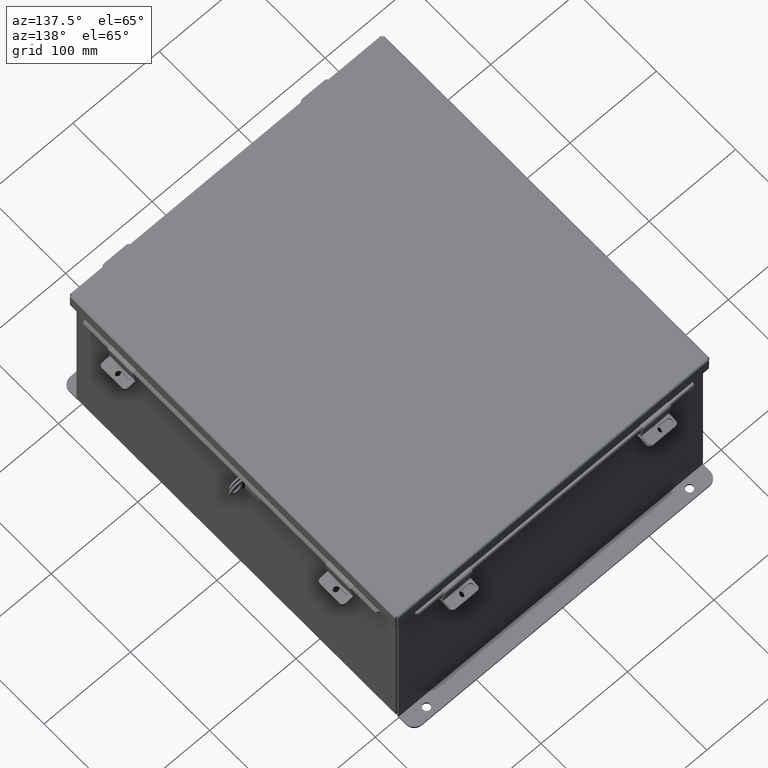
[diagram: clean part render]
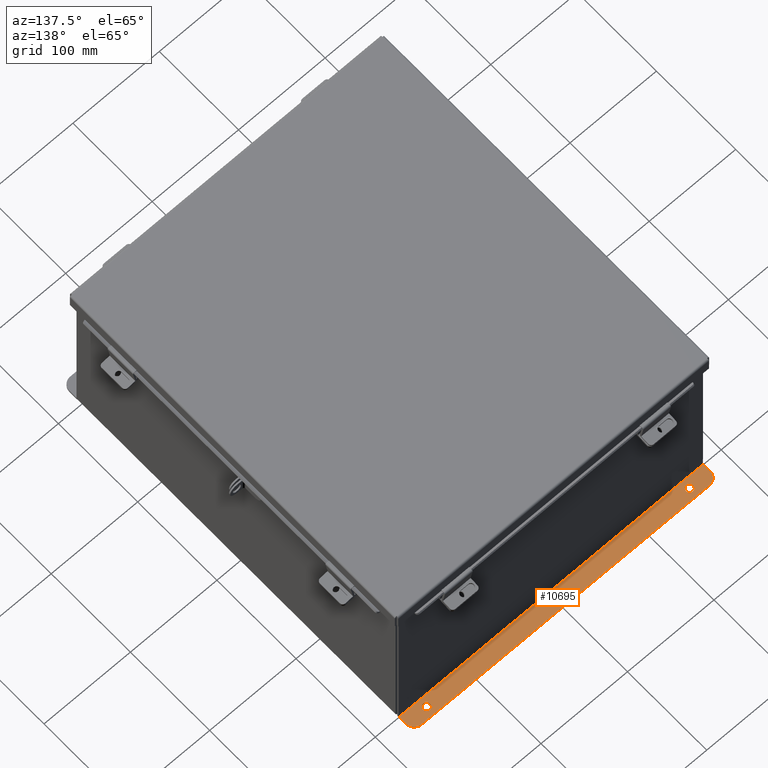
[diagram: same view with one face highlighted and labeled with its STEP entity id]
A machine part, auxiliary view. The second image highlights one B-rep face of the part: STEP entity #10695.
In plain terms, the highlighted planar face has unit normal (0, 0, 1).
Its self-contained STEP definition (entity closure, byte-faithful):
#215 = VERTEX_POINT ( 'NONE', #13332 ) ;
#504 = AXIS2_PLACEMENT_3D ( 'NONE', #4328, #17950, #3657 ) ;
#802 = ORIENTED_EDGE ( 'NONE', *, *, #11020, .T. ) ;
#816 = VERTEX_POINT ( 'NONE', #18665 ) ;
#882 = ORIENTED_EDGE ( 'NONE', *, *, #13962, .T. ) ;
#1008 = DIRECTION ( 'NONE',  ( 0.0000000000000000000, -1.000000000000000000, 3.502369222646487400E-015 ) ) ;
#1083 = VERTEX_POINT ( 'NONE', #13956 ) ;
#1471 = CARTESIAN_POINT ( 'NONE',  ( 6.550299999999998200, 0.7378000000000000100, -4.112300000000003800 ) ) ;
#1529 = CARTESIAN_POINT ( 'NONE',  ( -6.550299999999998200, 0.3628000000000008400, -4.112300000000002100 ) ) ;
#1829 = AXIS2_PLACEMENT_3D ( 'NONE', #17638, #12335, #18118 ) ;
#1921 = VERTEX_POINT ( 'NONE', #2458 ) ;
#2137 = DIRECTION ( 'NONE',  ( -0.0000000000000000000, -3.702694488566362300E-015, -1.000000000000000000 ) ) ;
#2458 = CARTESIAN_POINT ( 'NONE',  ( -6.925299999999999100, 0.01299999999999901400, -4.112300000000001200 ) ) ;
#2719 = CARTESIAN_POINT ( 'NONE',  ( -6.925300000000000900, 0.7378000000000000100, -4.112300000000003800 ) ) ;
#2806 = CIRCLE ( 'NONE', #12779, 0.3750000000000000600 ) ;
#3120 = DIRECTION ( 'NONE',  ( 0.0000000000000000000, -1.000000000000000000, 4.370956789862820400E-015 ) ) ;
#3512 = ORIENTED_EDGE ( 'NONE', *, *, #5324, .T. ) ;
#3657 = DIRECTION ( 'NONE',  ( 0.0000000000000000000, -1.000000000000000000, 3.502369222646487400E-015 ) ) ;
#4328 = CARTESIAN_POINT ( 'NONE',  ( -5.987800000000000000, 0.3627999999999997300, -4.112300000000002100 ) ) ;
#4696 = CARTESIAN_POINT ( 'NONE',  ( 6.925299999999998200, 0.01300000000000010700, -4.112300000000001200 ) ) ;
#4717 = DIRECTION ( 'NONE',  ( -0.0000000000000000000, -1.000000000000000000, 3.702694488566362300E-015 ) ) ;
#4811 = ORIENTED_EDGE ( 'NONE', *, *, #5826, .T. ) ;
#4852 = CIRCLE ( 'NONE', #5545, 0.1560000000000001700 ) ;
#5324 = EDGE_CURVE ( 'NONE', #215, #11609, #5425, .T. ) ;
#5425 = CIRCLE ( 'NONE', #504, 0.1560000000000001700 ) ;
#5539 = ORIENTED_EDGE ( 'NONE', *, *, #8131, .F. ) ;
#5545 = AXIS2_PLACEMENT_3D ( 'NONE', #19619, #10361, #1008 ) ;
#5580 = DIRECTION ( 'NONE',  ( -0.0000000000000000000, -3.702694488566362300E-015, -1.000000000000000000 ) ) ;
#5826 = EDGE_CURVE ( 'NONE', #9934, #17287, #16308, .T. ) ;
#5851 = LINE ( 'NONE', #18247, #9471 ) ;
#7277 = EDGE_CURVE ( 'NONE', #9934, #17318, #9967, .T. ) ;
#7303 = FACE_BOUND ( 'NONE', #9302, .T. ) ;
#7860 = ORIENTED_EDGE ( 'NONE', *, *, #13972, .F. ) ;
#8046 = AXIS2_PLACEMENT_3D ( 'NONE', #15106, #18199, #8916 ) ;
#8131 = EDGE_CURVE ( 'NONE', #1921, #1083, #17296, .T. ) ;
#8558 = VECTOR ( 'NONE', #10479, 39.37007874015748100 ) ;
#8916 = DIRECTION ( 'NONE',  ( 0.0000000000000000000, -1.000000000000000000, 3.702694488566362300E-015 ) ) ;
#9302 = EDGE_LOOP ( 'NONE', ( #13908, #3512 ) ) ;
#9314 = DIRECTION ( 'NONE',  ( -1.000000000000000000, -3.944735958968223300E-017, 1.460615209412118400E-031 ) ) ;
#9470 = AXIS2_PLACEMENT_3D ( 'NONE', #14896, #5580, #16421 ) ;
#9471 = VECTOR ( 'NONE', #19788, 39.37007874015748100 ) ;
#9926 = CIRCLE ( 'NONE', #9470, 0.1560000000000001700 ) ;
#9934 = VERTEX_POINT ( 'NONE', #19293 ) ;
#9967 = LINE ( 'NONE', #15499, #18209 ) ;
#10361 = DIRECTION ( 'NONE',  ( -0.0000000000000000000, -3.702694488566362300E-015, -1.000000000000000000 ) ) ;
#10415 = PLANE ( 'NONE',  #8046 ) ;
#10479 = DIRECTION ( 'NONE',  ( -0.0000000000000000000, 1.000000000000000000, -3.702694488566362300E-015 ) ) ;
#10485 = EDGE_CURVE ( 'NONE', #816, #12493, #9926, .T. ) ;
#10612 = VECTOR ( 'NONE', #9314, 39.37007874015748100 ) ;
#10695 = ADVANCED_FACE ( 'NONE', ( #7303, #15580, #11947 ), #10415, .T. ) ;
#11020 = EDGE_CURVE ( 'NONE', #12493, #816, #14348, .T. ) ;
#11107 = LINE ( 'NONE', #4696, #10612 ) ;
#11283 = EDGE_CURVE ( 'NONE', #18076, #17287, #5851, .T. ) ;
#11502 = CARTESIAN_POINT ( 'NONE',  ( 5.987799999999998200, 0.3627999999999997300, -4.112300000000002100 ) ) ;
#11609 = VERTEX_POINT ( 'NONE', #17596 ) ;
#11947 = FACE_OUTER_BOUND ( 'NONE', #17960, .T. ) ;
#12140 = ORIENTED_EDGE ( 'NONE', *, *, #11283, .F. ) ;
#12335 = DIRECTION ( 'NONE',  ( 0.0000000000000000000, 3.702694488566362300E-015, 1.000000000000000000 ) ) ;
#12456 = DIRECTION ( 'NONE',  ( 0.0000000000000000000, 3.702694488566362300E-015, 1.000000000000000000 ) ) ;
#12493 = VERTEX_POINT ( 'NONE', #17590 ) ;
#12779 = AXIS2_PLACEMENT_3D ( 'NONE', #1529, #12456, #3120 ) ;
#12867 = AXIS2_PLACEMENT_3D ( 'NONE', #11502, #2137, #13046 ) ;
#13046 = DIRECTION ( 'NONE',  ( 0.0000000000000000000, -1.000000000000000000, 3.502369222646487400E-015 ) ) ;
#13332 = CARTESIAN_POINT ( 'NONE',  ( -5.987800000000000000, 0.2067999999999996000, -4.112300000000001200 ) ) ;
#13638 = CARTESIAN_POINT ( 'NONE',  ( -6.550299999999998200, 0.7378000000000000100, -4.112300000000003800 ) ) ;
#13908 = ORIENTED_EDGE ( 'NONE', *, *, #18523, .T. ) ;
#13956 = CARTESIAN_POINT ( 'NONE',  ( -6.925300000000000900, 0.3628000000000008400, -4.112300000000002100 ) ) ;
#13962 = EDGE_CURVE ( 'NONE', #18076, #1083, #2806, .T. ) ;
#13972 = EDGE_CURVE ( 'NONE', #17318, #1921, #11107, .T. ) ;
#14046 = ORIENTED_EDGE ( 'NONE', *, *, #10485, .T. ) ;
#14348 = CIRCLE ( 'NONE', #12867, 0.1560000000000001700 ) ;
#14896 = CARTESIAN_POINT ( 'NONE',  ( 5.987799999999998200, 0.3627999999999997300, -4.112300000000002100 ) ) ;
#15106 = CARTESIAN_POINT ( 'NONE',  ( 0.0000000000000000000, -1.420560956705417000E-014, -4.112300000000001200 ) ) ;
#15278 = ORIENTED_EDGE ( 'NONE', *, *, #7277, .F. ) ;
#15499 = CARTESIAN_POINT ( 'NONE',  ( 6.925299999999998200, 0.0000000000000000000, -4.112300000000001200 ) ) ;
#15580 = FACE_BOUND ( 'NONE', #16154, .T. ) ;
#16154 = EDGE_LOOP ( 'NONE', ( #802, #14046 ) ) ;
#16308 = CIRCLE ( 'NONE', #1829, 0.3750000000000000600 ) ;
#16421 = DIRECTION ( 'NONE',  ( 0.0000000000000000000, -1.000000000000000000, 3.502369222646487400E-015 ) ) ;
#17287 = VERTEX_POINT ( 'NONE', #1471 ) ;
#17296 = LINE ( 'NONE', #2719, #8558 ) ;
#17318 = VERTEX_POINT ( 'NONE', #18603 ) ;
#17590 = CARTESIAN_POINT ( 'NONE',  ( 5.987799999999998200, 0.5187999999999999300, -4.112300000000002100 ) ) ;
#17596 = CARTESIAN_POINT ( 'NONE',  ( -5.987800000000000000, 0.5187999999999999300, -4.112300000000002100 ) ) ;
#17638 = CARTESIAN_POINT ( 'NONE',  ( 6.550299999999998200, 0.3627999999999997300, -4.112300000000002100 ) ) ;
#17950 = DIRECTION ( 'NONE',  ( -0.0000000000000000000, -3.702694488566362300E-015, -1.000000000000000000 ) ) ;
#17960 = EDGE_LOOP ( 'NONE', ( #15278, #4811, #12140, #882, #5539, #7860 ) ) ;
#18076 = VERTEX_POINT ( 'NONE', #13638 ) ;
#18118 = DIRECTION ( 'NONE',  ( 0.0000000000000000000, -1.000000000000000000, 4.370956789862820400E-015 ) ) ;
#18199 = DIRECTION ( 'NONE',  ( 0.0000000000000000000, 3.702694488566362300E-015, 1.000000000000000000 ) ) ;
#18209 = VECTOR ( 'NONE', #4717, 39.37007874015748100 ) ;
#18247 = CARTESIAN_POINT ( 'NONE',  ( 6.925299999999998200, 0.7378000000000000100, -4.112300000000003800 ) ) ;
#18523 = EDGE_CURVE ( 'NONE', #11609, #215, #4852, .T. ) ;
#18603 = CARTESIAN_POINT ( 'NONE',  ( 6.925299999999998200, 0.01300000000000010700, -4.112300000000001200 ) ) ;
#18665 = CARTESIAN_POINT ( 'NONE',  ( 5.987799999999998200, 0.2067999999999996000, -4.112300000000001200 ) ) ;
#19293 = CARTESIAN_POINT ( 'NONE',  ( 6.925299999999998200, 0.3627999999999997300, -4.112300000000002100 ) ) ;
#19619 = CARTESIAN_POINT ( 'NONE',  ( -5.987800000000000000, 0.3627999999999997300, -4.112300000000002100 ) ) ;
#19788 = DIRECTION ( 'NONE',  ( 1.000000000000000000, -0.0000000000000000000, -0.0000000000000000000 ) ) ;